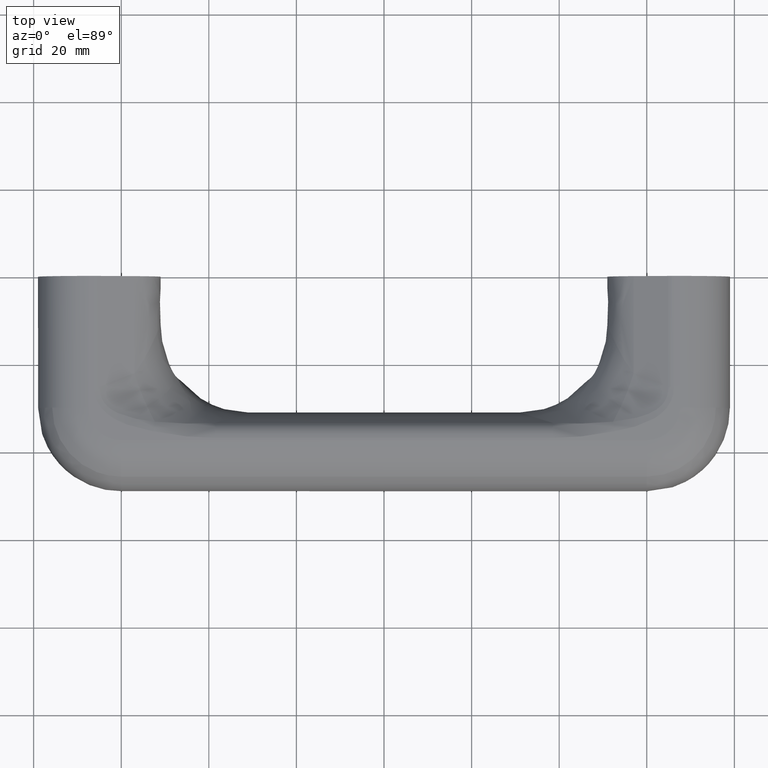
[diagram: clean part render]
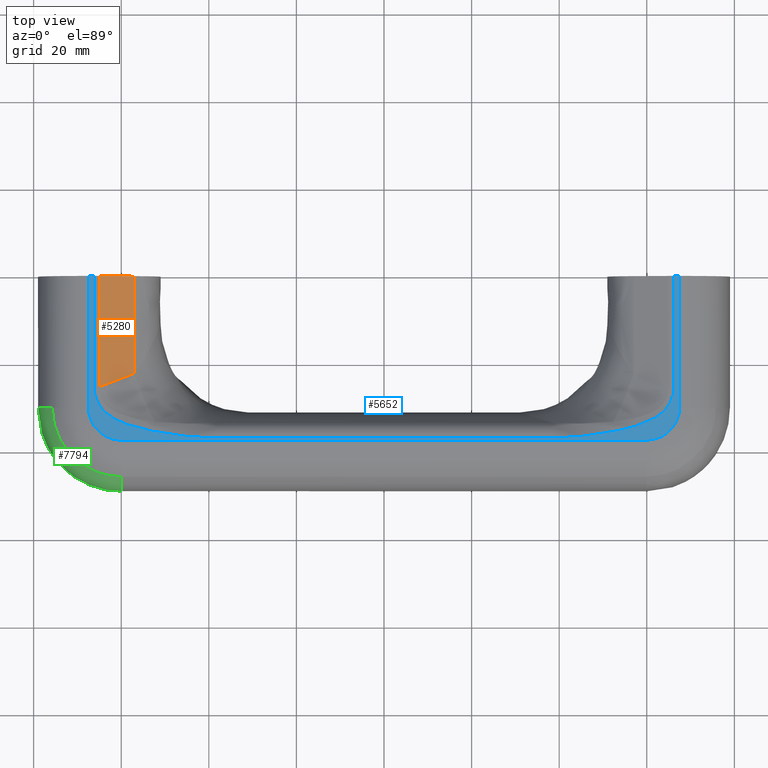
[diagram: same view with three faces highlighted in distinct colors, each labeled with its STEP entity id]
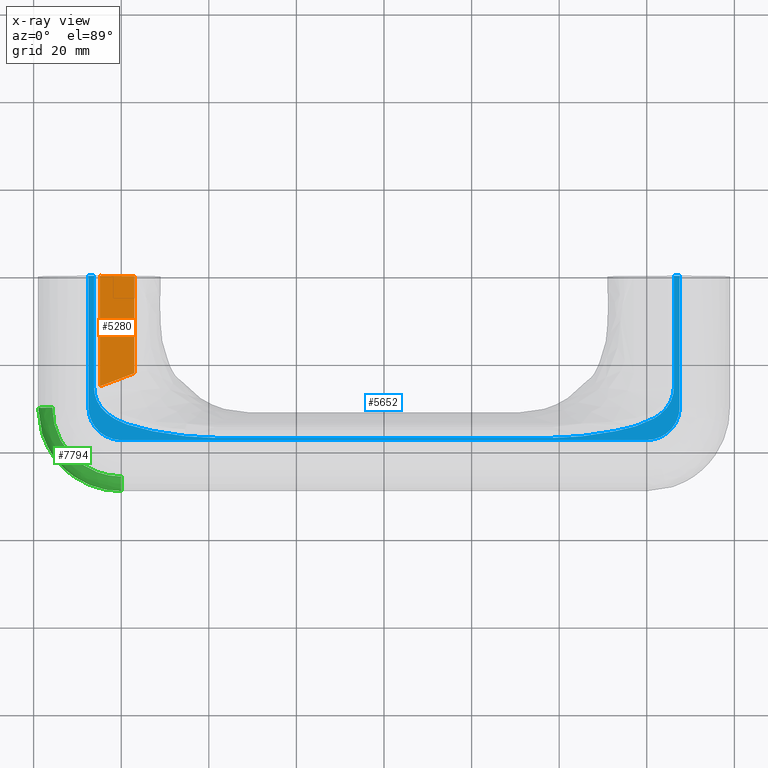
[diagram: x-ray of the same camera — body ghosted, the three highlighted faces saturated]
A machine part, top view with three faces highlighted in distinct colors.
The next image is the same camera in x-ray (body ghosted, the three faces saturated) — at least one of them is partly hidden behind the body in this view.
Their STEP definitions:

[orange] entity #5280 — the highlighted face is a freeform B-spline surface patch.
#1765=CARTESIAN_POINT('',(-64.880357608353989,11.271261134376820,25.234505489809450));
#1766=VERTEX_POINT('',#1765);
#1774=CARTESIAN_POINT('',(-64.880357608354203,11.271261134376900,0.0));
#1775=VERTEX_POINT('',#1774);
#1776=CARTESIAN_POINT('',(-64.880357608354203,11.271261134376900,0.0));
#1777=CARTESIAN_POINT('',(-64.880357608353989,11.271261134376820,25.234505489809450));
#1778=QUASI_UNIFORM_CURVE('',1,(#1776,#1777),.UNSPECIFIED.,.F.,.U.);
#1779=EDGE_CURVE('',#1775,#1766,#1778,.T.);
#4021=CARTESIAN_POINT('',(-57.000106220408597,8.485337552347890,22.189308786029748));
#4022=VERTEX_POINT('',#4021);
#4023=CARTESIAN_POINT('',(-64.880357608353989,11.271261134376820,25.234505489809450));
#4024=CARTESIAN_POINT('',(-62.286965194797993,10.354413088966380,24.125626392317830));
#4025=CARTESIAN_POINT('',(-59.658212485286150,9.425064035971104,23.109791271874059));
#4026=CARTESIAN_POINT('',(-57.000106220408597,8.485337552347890,22.189308786029748));
#4027=B_SPLINE_CURVE_WITH_KNOTS('',3,(#4023,#4024,#4025,#4026),.UNSPECIFIED.,.F.,.U.,(4,4),(5.153566E-011,8.897371943618710),.UNSPECIFIED.);
#4028=EDGE_CURVE('',#1766,#4022,#4027,.T.);
#5214=CARTESIAN_POINT('',(-57.000106220408597,8.485337552347890,0.0));
#5215=VERTEX_POINT('',#5214);
#5216=CARTESIAN_POINT('',(-57.000106220408597,8.485337552347890,0.0));
#5217=CARTESIAN_POINT('',(-64.880357608354203,11.271261134376900,0.0));
#5218=QUASI_UNIFORM_CURVE('',1,(#5216,#5217),.UNSPECIFIED.,.F.,.U.);
#5219=EDGE_CURVE('',#5215,#1775,#5218,.T.);
#5265=CARTESIAN_POINT('',(-65.273974494323269,11.410417426596670,-1.260463410151236));
#5266=CARTESIAN_POINT('',(-56.606488136705572,8.346180836690472,-1.260463410151236));
#5267=CARTESIAN_POINT('',(-65.273974494323269,11.410417426596670,26.494967771890380));
#5268=CARTESIAN_POINT('',(-56.606488136705572,8.346180836690472,26.494967771890380));
#5269=B_SPLINE_SURFACE_WITH_KNOTS('',1,1,((#5265,#5267),(#5266,#5268)),.UNSPECIFIED.,.F.,.F.,.U.,(2,2),(2,2),(0.0,9.193196703998497),(0.0,27.755431182041619),.UNSPECIFIED.);
#5270=ORIENTED_EDGE('',*,*,#5219,.T.);
#5271=ORIENTED_EDGE('',*,*,#1779,.T.);
#5272=ORIENTED_EDGE('',*,*,#4028,.T.);
#5273=CARTESIAN_POINT('',(-57.000106220408597,8.485337552347890,22.189308786029748));
#5274=CARTESIAN_POINT('',(-57.000106220408597,8.485337552347890,0.0));
#5275=QUASI_UNIFORM_CURVE('',1,(#5273,#5274),.UNSPECIFIED.,.F.,.U.);
#5276=EDGE_CURVE('',#4022,#5215,#5275,.T.);
#5277=ORIENTED_EDGE('',*,*,#5276,.T.);
#5278=EDGE_LOOP('',(#5270,#5271,#5272,#5277));
#5279=FACE_OUTER_BOUND('',#5278,.T.);
#5280=ADVANCED_FACE('',(#5279),#5269,.F.);

[blue] entity #5652 — the highlighted face is a freeform B-spline surface patch.
#1763=CARTESIAN_POINT('',(-66.213620319277396,11.500000000000000,25.234505489809450));
#1764=VERTEX_POINT('',#1763);
#1781=CARTESIAN_POINT('',(-66.213620319277595,11.500000000000000,0.0));
#1782=VERTEX_POINT('',#1781);
#1790=CARTESIAN_POINT('',(-66.213620319277396,11.500000000000000,25.234505489809450));
#1791=CARTESIAN_POINT('',(-66.213620319277595,11.500000000000000,0.0));
#1792=QUASI_UNIFORM_CURVE('',1,(#1790,#1791),.UNSPECIFIED.,.F.,.U.);
#1793=EDGE_CURVE('',#1764,#1782,#1792,.T.);
#1936=CARTESIAN_POINT('',(-52.729994420142603,11.500000000000000,35.477175857713263));
#1937=VERTEX_POINT('',#1936);
#1994=CARTESIAN_POINT('',(-52.729994420142603,11.500000000000000,35.477175857713263));
#1995=CARTESIAN_POINT('',(-53.488904169836282,11.500000000000000,35.340321623410659));
#1996=CARTESIAN_POINT('',(-54.243113151632983,11.500000000000000,35.187968396025461));
#1997=CARTESIAN_POINT('',(-55.739156877870130,11.500000000000000,34.842462603064348));
#1998=CARTESIAN_POINT('',(-56.481020264316683,11.500000000000000,34.649404473602686));
#1999=CARTESIAN_POINT('',(-57.581189257320233,11.500000000000000,34.318187563970142));
#2000=CARTESIAN_POINT('',(-57.945793692947412,11.500000000000000,34.200796775397102));
#2001=CARTESIAN_POINT('',(-58.669961895551687,11.500000000000011,33.949395511797292));
#2002=CARTESIAN_POINT('',(-59.029528679841427,11.500000000000000,33.815394985210688));
#2003=CARTESIAN_POINT('',(-59.742577608030352,11.500000000000000,33.527332146093222));
#2004=CARTESIAN_POINT('',(-60.096064774446162,11.500000000000000,33.373286393399447));
#2005=CARTESIAN_POINT('',(-60.620678594342337,11.500000000000000,33.123698076320622));
#2006=CARTESIAN_POINT('',(-60.794905578739083,11.500000000000000,33.037247933991843));
#2007=CARTESIAN_POINT('',(-61.139631475198392,11.500000000000000,32.858263762630592));
#2008=CARTESIAN_POINT('',(-61.310034073504390,11.500000000000000,32.765794383837481));
#2009=CARTESIAN_POINT('',(-61.814829136056623,11.500000000000000,32.478646872015837));
#2010=CARTESIAN_POINT('',(-62.142839014478767,11.500000000000000,32.274275148784582));
#2011=CARTESIAN_POINT('',(-62.778364897052739,11.500000000000000,31.834406508816070));
#2012=CARTESIAN_POINT('',(-63.085897442999617,11.500000000000000,31.598934715028559));
#2013=CARTESIAN_POINT('',(-63.454637448532651,11.500000000000000,31.280787445216291));
#2014=CARTESIAN_POINT('',(-63.527449709830087,11.500000000000000,31.216084728504239));
#2015=CARTESIAN_POINT('',(-63.670577378569597,11.500000000000000,31.084970737128021));
#2016=CARTESIAN_POINT('',(-63.881778340977370,11.500000000000000,30.885517550708791));
#2017=CARTESIAN_POINT('',(-64.082235086464109,11.500000000000000,30.677500489536659));
#2018=CARTESIAN_POINT('',(-64.468044665556874,11.500000000000000,30.249427517774770));
#2019=CARTESIAN_POINT('',(-64.705138913137503,11.500000000000000,29.948014788502839));
#2020=CARTESIAN_POINT('',(-65.027093453886877,11.500000000000000,29.469044989663850));
#2021=CARTESIAN_POINT('',(-65.128791107448052,11.500000000000000,29.304908446378839));
#2022=CARTESIAN_POINT('',(-65.272399803663674,11.500000000000000,29.051579607021559));
#2023=CARTESIAN_POINT('',(-65.318779202616966,11.500000000000000,28.965948896123528));
#2024=CARTESIAN_POINT('',(-65.408466024103120,11.500000000000000,28.792238899293810));
#2025=CARTESIAN_POINT('',(-65.451537016579252,11.500000000000000,28.704606645589681));
#2026=CARTESIAN_POINT('',(-65.657329691174510,11.500000000000000,28.264231433441811));
#2027=CARTESIAN_POINT('',(-65.792248659361093,11.500000000000000,27.903200745651208));
#2028=CARTESIAN_POINT('',(-66.005964153798018,11.500000000000000,27.164650217592559));
#2029=CARTESIAN_POINT('',(-66.084762118038498,11.500000000000000,26.787130799815738));
#2030=CARTESIAN_POINT('',(-66.162826681636801,11.500000000000000,26.209060508051060));
#2031=CARTESIAN_POINT('',(-66.182127422259683,11.500000000000000,26.014213258301510));
#2032=CARTESIAN_POINT('',(-66.207480760351686,11.500000000000000,25.624860597865649));
#2033=CARTESIAN_POINT('',(-66.213620319277382,11.500000000000000,25.429843204579001));
#2034=CARTESIAN_POINT('',(-66.213620319277396,11.500000000000000,25.234505489809450));
#2035=B_SPLINE_CURVE_WITH_KNOTS('',3,(#1994,#1995,#1996,#1997,#1998,#1999,#2000,#2001,#2002,#2003,#2004,#2005,#2006,#2007,#2008,#2009,#2010,#2011,#2012,#2013,#2014,#2015,#2016,#2017,#2018,#2019,#2020,#2021,#2022,#2023,#2024,#2025,#2026,#2027,#2028,#2029,#2030,#2031,#2032,#2033,#2034),.UNSPECIFIED.,.F.,.U.,(4,2,2,2,2,2,2,2,2,2,2,1,2,2,2,2,2,2,2,2,4),(0.0,0.124999999999996,0.249999999999991,0.312499999999989,0.374999999999987,0.437499999999985,0.468749999999984,0.499999999999983,0.562499999999981,0.624999999999979,0.640624999999979,0.656249999999980,0.687499999999981,0.749999999999985,0.781249999999987,0.796874999999988,0.812499999999989,0.874999999999992,0.937499999999996,0.968749999999998,1.0),.UNSPECIFIED.);
#2036=EDGE_CURVE('',#1937,#1764,#2035,.T.);
#2109=CARTESIAN_POINT('',(-38.534859386320498,11.500000000000000,37.009618943233448));
#2110=VERTEX_POINT('',#2109);
#2141=CARTESIAN_POINT('',(-38.534859386320498,11.500000000000000,37.009618943233448));
#2142=CARTESIAN_POINT('',(-39.731573612433287,11.500000000000000,37.009618943233463));
#2143=CARTESIAN_POINT('',(-40.924028936123207,11.500000000000000,36.970168411230190));
#2144=CARTESIAN_POINT('',(-43.301592718660267,11.500000000000000,36.823212788132203));
#2145=CARTESIAN_POINT('',(-44.486682026166747,11.500000000000000,36.715530296734741));
#2146=CARTESIAN_POINT('',(-46.259572822171833,11.500000000000000,36.510070264768153));
#2147=CARTESIAN_POINT('',(-46.849746488689782,11.500000000000000,36.434266386795052));
#2148=CARTESIAN_POINT('',(-48.028697272608113,11.500000000000000,36.269722291814723));
#2149=CARTESIAN_POINT('',(-48.617472512228453,11.500000000000000,36.180964680790431));
#2150=CARTESIAN_POINT('',(-49.793894861276740,11.500000000000000,35.992999504307193));
#2151=CARTESIAN_POINT('',(-50.381539085232632,11.500000000000000,35.893765210504633));
#2152=CARTESIAN_POINT('',(-51.556125425607661,11.500000000000000,35.688792948220978));
#2153=CARTESIAN_POINT('',(-52.143063457925223,11.500000000000000,35.583017148400558));
#2154=CARTESIAN_POINT('',(-52.729994420142603,11.500000000000000,35.477175857713263));
#2155=B_SPLINE_CURVE_WITH_KNOTS('',3,(#2141,#2142,#2143,#2144,#2145,#2146,#2147,#2148,#2149,#2150,#2151,#2152,#2153,#2154),.UNSPECIFIED.,.F.,.U.,(4,2,2,2,2,2,4),(0.0,0.250000000000000,0.500000000000000,0.625000000000000,0.750000000000000,0.875000000000000,1.0),.UNSPECIFIED.);
#2156=EDGE_CURVE('',#2110,#1937,#2155,.T.);
#2175=CARTESIAN_POINT('',(38.534859386320498,11.500000000000000,37.009618943233448));
#2176=VERTEX_POINT('',#2175);
#2195=CARTESIAN_POINT('',(38.534859386320498,11.500000000000000,37.009618943233448));
#2196=CARTESIAN_POINT('',(-38.534859386320498,11.500000000000000,37.009618943233448));
#2197=QUASI_UNIFORM_CURVE('',1,(#2195,#2196),.UNSPECIFIED.,.F.,.U.);
#2198=EDGE_CURVE('',#2176,#2110,#2197,.T.);
#2271=CARTESIAN_POINT('',(52.729994420142603,11.500000000000000,35.477175857713263));
#2272=VERTEX_POINT('',#2271);
#2301=CARTESIAN_POINT('',(52.729994420142603,11.500000000000000,35.477175857713263));
#2302=CARTESIAN_POINT('',(52.143063457925201,11.500000000000000,35.583017148400558));
#2303=CARTESIAN_POINT('',(51.556125425607682,11.500000000000000,35.688792948220922));
#2304=CARTESIAN_POINT('',(50.381539085232610,11.500000000000000,35.893765210504561));
#2305=CARTESIAN_POINT('',(49.793894861276733,11.500000000000000,35.992999504307200));
#2306=CARTESIAN_POINT('',(48.617472512228453,11.500000000000000,36.180964680790417));
#2307=CARTESIAN_POINT('',(48.028697272607580,11.500000000000000,36.269722291810027));
#2308=CARTESIAN_POINT('',(46.849746488689263,11.500000000000000,36.434266386790483));
#2309=CARTESIAN_POINT('',(46.259572822171833,11.500000000000000,36.510070264768082));
#2310=CARTESIAN_POINT('',(44.486682026166761,11.500000000000000,36.715530296734698));
#2311=CARTESIAN_POINT('',(43.301592718660309,11.500000000000000,36.823212788132437));
#2312=CARTESIAN_POINT('',(40.924028936123172,11.500000000000000,36.970168411229963));
#2313=CARTESIAN_POINT('',(39.731573612433273,11.500000000000000,37.009618943233413));
#2314=CARTESIAN_POINT('',(38.534859386320498,11.500000000000000,37.009618943233413));
#2315=B_SPLINE_CURVE_WITH_KNOTS('',3,(#2301,#2302,#2303,#2304,#2305,#2306,#2307,#2308,#2309,#2310,#2311,#2312,#2313,#2314),.UNSPECIFIED.,.F.,.U.,(4,2,2,2,2,2,4),(0.0,0.125000000000000,0.250000000000000,0.375000000000000,0.500000000000000,0.750000000000000,1.0),.UNSPECIFIED.);
#2316=EDGE_CURVE('',#2272,#2176,#2315,.T.);
#2459=CARTESIAN_POINT('',(66.213620319277396,11.500000000000000,25.234505489809450));
#2460=VERTEX_POINT('',#2459);
#2516=CARTESIAN_POINT('',(66.213620319277396,11.500000000000000,25.234505489809450));
#2517=CARTESIAN_POINT('',(66.213620319277197,11.500000000000000,25.624395927681402));
#2518=CARTESIAN_POINT('',(66.189183835421431,11.500000000000000,26.009588825115820));
#2519=CARTESIAN_POINT('',(66.087657491772816,11.500000000000000,26.769852813422741));
#2520=CARTESIAN_POINT('',(66.010574055699649,11.500000000000000,27.144925139157191));
#2521=CARTESIAN_POINT('',(65.851777376435948,11.500000000000000,27.699234562052052));
#2522=CARTESIAN_POINT('',(65.791640387333885,11.500000000000000,27.882619364204299));
#2523=CARTESIAN_POINT('',(65.656218282853018,11.500000000000000,28.246476972815909));
#2524=CARTESIAN_POINT('',(65.580565975018089,11.500000000000000,28.427594826587690));
#2525=CARTESIAN_POINT('',(65.334768834752708,11.500000000000000,28.956190189907911));
#2526=CARTESIAN_POINT('',(65.144947929638519,11.500000000000000,29.291873902768629));
#2527=CARTESIAN_POINT('',(64.716989813000382,11.500000000000000,29.932130394955461));
#2528=CARTESIAN_POINT('',(64.478844463518939,11.500000000000000,30.236697934239981));
#2529=CARTESIAN_POINT('',(64.152933953351976,11.500000000000000,30.599230781715949));
#2530=CARTESIAN_POINT('',(64.086435702730483,11.500000000000000,30.670711987923909));
#2531=CARTESIAN_POINT('',(63.951694375327953,11.500000000000000,30.810876591723702));
#2532=CARTESIAN_POINT('',(63.883339259570000,11.500000000000000,30.879685964383349));
#2533=CARTESIAN_POINT('',(63.675463675520447,11.500000000000000,31.082480352776859));
#2534=CARTESIAN_POINT('',(63.533136032049093,11.500000000000000,31.212835597670701));
#2535=CARTESIAN_POINT('',(63.095943317233328,11.500000000000000,31.590699741666992));
#2536=CARTESIAN_POINT('',(62.790903053667343,11.500000000000000,31.825051778923420));
#2537=CARTESIAN_POINT('',(62.158092566394231,11.500000000000000,32.264365259250589));
#2538=CARTESIAN_POINT('',(61.830310171711517,11.500000000000000,32.469310964845327));
#2539=CARTESIAN_POINT('',(61.324157972478730,11.500000000000000,32.758008202733443));
#2540=CARTESIAN_POINT('',(61.153597356328021,11.500000000000000,32.850775115433372));
#2541=CARTESIAN_POINT('',(60.810451787164041,11.500000000000000,33.029394124451102));
#2542=CARTESIAN_POINT('',(60.637654675410857,11.500000000000000,33.115366914363122));
#2543=CARTESIAN_POINT('',(60.115963272076563,11.500000000000000,33.364291458286303));
#2544=CARTESIAN_POINT('',(59.763782670690759,11.500000000000000,33.518286882524450));
#2545=CARTESIAN_POINT('',(58.696451505452913,11.500000000000000,33.950868418127193));
#2546=CARTESIAN_POINT('',(57.970628268529929,11.500000000000000,34.200367807526042));
#2547=CARTESIAN_POINT('',(56.866818299499698,11.500000000000000,34.533531997868117));
#2548=CARTESIAN_POINT('',(56.496334477170663,11.500000000000000,34.637644820520777));
#2549=CARTESIAN_POINT('',(55.751006418316621,11.500000000000000,34.833986830439663));
#2550=CARTESIAN_POINT('',(55.375900092362691,11.500000000000000,34.926270516126223));
#2551=CARTESIAN_POINT('',(54.247116615814143,11.500000000000000,35.187210774511946));
#2552=CARTESIAN_POINT('',(53.490200689910282,11.500000000000000,35.340087821878782));
#2553=CARTESIAN_POINT('',(52.729994420142610,11.500000000000000,35.477175857713213));
#2554=B_SPLINE_CURVE_WITH_KNOTS('',3,(#2516,#2517,#2518,#2519,#2520,#2521,#2522,#2523,#2524,#2525,#2526,#2527,#2528,#2529,#2530,#2531,#2532,#2533,#2534,#2535,#2536,#2537,#2538,#2539,#2540,#2541,#2542,#2543,#2544,#2545,#2546,#2547,#2548,#2549,#2550,#2551,#2552,#2553),.UNSPECIFIED.,.F.,.U.,(4,2,2,2,2,2,2,2,2,2,2,2,2,2,2,2,2,2,4),(0.0,0.062500000000002,0.125000000000004,0.156250000000005,0.187500000000006,0.250000000000006,0.312500000000007,0.328125000000007,0.343750000000006,0.375000000000005,0.437500000000005,0.500000000000004,0.531250000000004,0.562500000000004,0.625000000000003,0.750000000000002,0.812500000000001,0.875000000000001,1.0),.UNSPECIFIED.);
#2555=EDGE_CURVE('',#2460,#2272,#2554,.T.);
#2576=CARTESIAN_POINT('',(66.213620319277396,11.500000000000000,0.0));
#2577=VERTEX_POINT('',#2576);
#2591=CARTESIAN_POINT('',(66.213620319277396,11.500000000000000,0.0));
#2592=CARTESIAN_POINT('',(66.213620319277396,11.500000000000000,25.234505489809450));
#2593=QUASI_UNIFORM_CURVE('',1,(#2591,#2592),.UNSPECIFIED.,.F.,.U.);
#2594=EDGE_CURVE('',#2577,#2460,#2593,.T.);
#4686=CARTESIAN_POINT('',(67.500000000000000,11.500000000000000,0.0));
#4687=VERTEX_POINT('',#4686);
#4702=CARTESIAN_POINT('',(67.500000000000000,11.500000000000000,30.0));
#4703=VERTEX_POINT('',#4702);
#4704=CARTESIAN_POINT('',(67.500000000000000,11.500000000000000,30.0));
#4705=CARTESIAN_POINT('',(67.500000000000000,11.500000000000000,0.0));
#4706=QUASI_UNIFORM_CURVE('',1,(#4704,#4705),.UNSPECIFIED.,.F.,.U.);
#4707=EDGE_CURVE('',#4703,#4687,#4706,.T.);
#4833=CARTESIAN_POINT('',(-67.500000000000000,11.500000000000000,0.0));
#4834=VERTEX_POINT('',#4833);
#4835=CARTESIAN_POINT('',(-67.500000000000000,11.500000000000000,30.0));
#4836=VERTEX_POINT('',#4835);
#4837=CARTESIAN_POINT('',(-67.500000000000000,11.500000000000000,0.0));
#4838=CARTESIAN_POINT('',(-67.500000000000000,11.500000000000000,30.0));
#4839=QUASI_UNIFORM_CURVE('',1,(#4837,#4838),.UNSPECIFIED.,.F.,.U.);
#4840=EDGE_CURVE('',#4834,#4836,#4839,.T.);
#5208=CARTESIAN_POINT('',(-66.213620319277595,11.500000000000000,0.0));
#5209=CARTESIAN_POINT('',(-67.500000000000000,11.500000000000000,0.0));
#5210=QUASI_UNIFORM_CURVE('',1,(#5208,#5209),.UNSPECIFIED.,.F.,.U.);
#5211=EDGE_CURVE('',#1782,#4834,#5210,.T.);
#5335=CARTESIAN_POINT('',(67.500000000000000,11.500000000000000,0.0));
#5336=CARTESIAN_POINT('',(66.213620319277396,11.500000000000000,0.0));
#5337=QUASI_UNIFORM_CURVE('',1,(#5335,#5336),.UNSPECIFIED.,.F.,.U.);
#5338=EDGE_CURVE('',#4687,#2577,#5337,.T.);
#5599=CARTESIAN_POINT('',(-74.243249738343806,11.500000000000000,39.373124927317733));
#5600=CARTESIAN_POINT('',(-74.243249738343806,11.500000000000000,-1.873125933146104));
#5601=CARTESIAN_POINT('',(74.243253359325962,11.500000000000000,39.373124927317733));
#5602=CARTESIAN_POINT('',(74.243253359325962,11.500000000000000,-1.873125933146104));
#5603=B_SPLINE_SURFACE_WITH_KNOTS('',1,1,((#5599,#5601),(#5600,#5602)),.UNSPECIFIED.,.F.,.F.,.U.,(2,2),(2,2),(0.0,41.246250860463832),(0.0,148.486503097669810),.UNSPECIFIED.);
#5604=ORIENTED_EDGE('',*,*,#2036,.T.);
#5605=ORIENTED_EDGE('',*,*,#1793,.T.);
#5606=ORIENTED_EDGE('',*,*,#5211,.T.);
#5607=ORIENTED_EDGE('',*,*,#4840,.T.);
#5608=CARTESIAN_POINT('',(-60.0,11.500000000000000,37.500000000000000));
#5609=VERTEX_POINT('',#5608);
#5610=CARTESIAN_POINT('',(-67.500000000000000,11.500000000000000,30.0));
#5611=CARTESIAN_POINT('',(-67.500193050719488,11.500000000000011,30.644301205108029));
#5612=CARTESIAN_POINT('',(-67.376641463103780,11.499999999999980,31.595239412575641));
#5613=CARTESIAN_POINT('',(-66.913853867959531,11.500000000000011,32.996214790717730));
#5614=CARTESIAN_POINT('',(-66.252719777912205,11.500000000000030,34.251730747223107));
#5615=CARTESIAN_POINT('',(-65.211058445649542,11.499999999999940,35.474364922625163));
#5616=CARTESIAN_POINT('',(-63.910740928671267,11.500000000000110,36.463669992642068));
#5617=CARTESIAN_POINT('',(-62.208638825225940,11.499999999999890,37.268863815585938));
#5618=CARTESIAN_POINT('',(-60.828418371429507,11.500000000000030,37.500505104197281));
#5619=CARTESIAN_POINT('',(-60.0,11.500000000000000,37.500000000000000));
#5620=B_SPLINE_CURVE_WITH_KNOTS('',3,(#5610,#5611,#5612,#5613,#5614,#5615,#5616,#5617,#5618,#5619),.UNSPECIFIED.,.F.,.U.,(4,1,1,1,1,1,1,4),(0.000000203037784,1.932828462892507,2.853221894001162,4.417913062456957,6.166622082685319,7.639267543508979,9.295986013194121,11.781046371576929),.UNSPECIFIED.);
#5621=EDGE_CURVE('',#4836,#5609,#5620,.T.);
#5622=ORIENTED_EDGE('',*,*,#5621,.T.);
#5623=CARTESIAN_POINT('',(60.0,11.500000000000000,37.500000000000000));
#5624=VERTEX_POINT('',#5623);
#5625=CARTESIAN_POINT('',(-60.0,11.500000000000000,37.500000000000000));
#5626=CARTESIAN_POINT('',(60.0,11.500000000000000,37.500000000000000));
#5627=QUASI_UNIFORM_CURVE('',1,(#5625,#5626),.UNSPECIFIED.,.F.,.U.);
#5628=EDGE_CURVE('',#5609,#5624,#5627,.T.);
#5629=ORIENTED_EDGE('',*,*,#5628,.T.);
#5630=CARTESIAN_POINT('',(60.0,11.500000000000000,37.500000000000000));
#5631=CARTESIAN_POINT('',(60.613604152078501,11.500000000000030,37.500178239203557));
#5632=CARTESIAN_POINT('',(61.564578623098683,11.499999999999970,37.382580133758047));
#5633=CARTESIAN_POINT('',(62.910355596258299,11.500000000000000,36.947092430395209));
#5634=CARTESIAN_POINT('',(64.254856672910236,11.500000000000041,36.260349827555054));
#5635=CARTESIAN_POINT('',(65.599214596117690,11.499999999999950,35.114871049910363));
#5636=CARTESIAN_POINT('',(66.568777478208233,11.500000000000069,33.719836565344920));
#5637=CARTESIAN_POINT('',(67.294523516694724,11.499999999999940,32.055215842800443));
#5638=CARTESIAN_POINT('',(67.500525381626588,11.500000000000041,30.828440901460208));
#5639=CARTESIAN_POINT('',(67.500000000000000,11.500000000000000,30.0));
#5640=B_SPLINE_CURVE_WITH_KNOTS('',3,(#5630,#5631,#5632,#5633,#5634,#5635,#5636,#5637,#5638,#5639),.UNSPECIFIED.,.F.,.U.,(4,1,1,1,1,1,1,4),(0.000000203047737,1.840764457850002,2.853221894006834,4.233844661044831,6.350684659206872,8.099465283774508,9.295986013194863,11.781046371576940),.UNSPECIFIED.);
#5641=EDGE_CURVE('',#5624,#4703,#5640,.T.);
#5642=ORIENTED_EDGE('',*,*,#5641,.T.);
#5643=ORIENTED_EDGE('',*,*,#4707,.T.);
#5644=ORIENTED_EDGE('',*,*,#5338,.T.);
#5645=ORIENTED_EDGE('',*,*,#2594,.T.);
#5646=ORIENTED_EDGE('',*,*,#2555,.T.);
#5647=ORIENTED_EDGE('',*,*,#2316,.T.);
#5648=ORIENTED_EDGE('',*,*,#2198,.T.);
#5649=ORIENTED_EDGE('',*,*,#2156,.T.);
#5650=EDGE_LOOP('',(#5604,#5605,#5606,#5607,#5622,#5629,#5642,#5643,#5644,#5645,#5646,#5647,#5648,#5649));
#5651=FACE_OUTER_BOUND('',#5650,.T.);
#5652=ADVANCED_FACE('',(#5651),#5603,.F.);

[green] entity #7794 — the highlighted face is a freeform B-spline surface patch.
#7525=CARTESIAN_POINT('',(-60.0,-8.0,45.761355820929303));
#7526=VERTEX_POINT('',#7525);
#7532=CARTESIAN_POINT('',(-75.761355820929396,-8.0,30.0));
#7533=VERTEX_POINT('',#7532);
#7534=CARTESIAN_POINT('',(-75.761355820929396,-8.0,30.0));
#7535=CARTESIAN_POINT('',(-75.761483316235982,-8.000000000000009,31.031573892610020));
#7536=CARTESIAN_POINT('',(-75.577135649233199,-7.999999999999990,32.901268992023333));
#7537=CARTESIAN_POINT('',(-74.907055399029133,-8.000000000000009,35.265962047416693));
#7538=CARTESIAN_POINT('',(-74.055466820733983,-8.0,37.219307177683312));
#7539=CARTESIAN_POINT('',(-72.937547430376853,-7.999999999999994,39.110750574899491));
#7540=CARTESIAN_POINT('',(-71.254471975040303,-8.000000000000048,41.161761598141382));
#7541=CARTESIAN_POINT('',(-69.222023040949736,-7.999999999999875,42.871820409858962));
#7542=CARTESIAN_POINT('',(-66.885541328793863,-8.000000000000156,44.252784920165489));
#7543=CARTESIAN_POINT('',(-63.932632995090827,-7.999999999999882,45.412979056721909));
#7544=CARTESIAN_POINT('',(-61.482947802119519,-8.000000000000046,45.761899452272658));
#7545=CARTESIAN_POINT('',(-60.0,-8.0,45.761355820929303));
#7546=B_SPLINE_CURVE_WITH_KNOTS('',3,(#7534,#7535,#7536,#7537,#7538,#7539,#7540,#7541,#7542,#7543,#7544,#7545),.UNSPECIFIED.,.F.,.U.,(4,1,1,1,1,1,1,1,1,4),(0.000000058961888,3.094724046781195,5.609238340113091,7.350053893603132,9.477726287240168,12.185618720924239,15.280312090083079,17.407986167518601,20.309340049871469,24.758035174011699),.UNSPECIFIED.);
#7547=EDGE_CURVE('',#7533,#7526,#7546,.T.);
#7568=CARTESIAN_POINT('',(-75.761355820928898,8.0,30.0));
#7569=VERTEX_POINT('',#7568);
#7575=CARTESIAN_POINT('',(-60.0,8.0,45.761355820928799));
#7576=VERTEX_POINT('',#7575);
#7577=CARTESIAN_POINT('',(-75.761355820928898,8.0,30.0));
#7578=CARTESIAN_POINT('',(-75.761774020126310,8.000000000000009,31.353989713744259));
#7579=CARTESIAN_POINT('',(-75.477035778835159,7.999999999999994,33.545854622828763));
#7580=CARTESIAN_POINT('',(-74.427641389078474,8.000000000000011,36.536393231785567));
#7581=CARTESIAN_POINT('',(-73.038710124303378,7.999999999999986,39.023764972116467));
#7582=CARTESIAN_POINT('',(-71.328566106285507,8.000000000000009,41.056154280927551));
#7583=CARTESIAN_POINT('',(-69.225321600923891,7.999999999999983,42.870413773864122));
#7584=CARTESIAN_POINT('',(-67.120312861196282,8.000000000000041,44.149809154212818));
#7585=CARTESIAN_POINT('',(-64.774486907498229,7.999999999999933,45.071081629214518));
#7586=CARTESIAN_POINT('',(-62.514449552678201,8.000000000000158,45.622506104826357));
#7587=CARTESIAN_POINT('',(-60.902634722738050,7.999999999999884,45.761433433132709));
#7588=CARTESIAN_POINT('',(-60.0,8.0,45.761355820928799));
#7589=B_SPLINE_CURVE_WITH_KNOTS('',3,(#7577,#7578,#7579,#7580,#7581,#7582,#7583,#7584,#7585,#7586,#7587,#7588),.UNSPECIFIED.,.F.,.U.,(4,1,1,1,1,1,1,1,1,4),(0.000000058945030,4.061845316967833,6.576357642830629,9.477726287229238,12.572419282884001,14.506650845124080,17.794839514349992,19.922484366228090,22.050127564209980,24.758035174010800),.UNSPECIFIED.);
#7590=EDGE_CURVE('',#7569,#7576,#7589,.T.);
#7719=CARTESIAN_POINT('',(-75.338370606732141,8.377929893946503,28.898996403117337));
#7720=CARTESIAN_POINT('',(-75.571314637991193,8.158327156731062,28.882275447361064));
#7721=CARTESIAN_POINT('',(-75.791694521280888,7.926055036731645,28.866456358723571));
#7722=CARTESIAN_POINT('',(-83.311938810381051,-2.168404E-013,28.326645695386137));
#7723=CARTESIAN_POINT('',(-75.791694521280888,-7.926055036732087,28.866456358723571));
#7724=CARTESIAN_POINT('',(-75.571314637991165,-8.158327156731506,28.882275447361071));
#7725=CARTESIAN_POINT('',(-75.338370606732113,-8.377929893946947,28.898996403117344));
#7726=CARTESIAN_POINT('',(-75.377835406513256,8.377929893946501,29.448790905766820));
#7727=CARTESIAN_POINT('',(-75.611378790193086,8.158327156731062,29.440419686178416));
#7728=CARTESIAN_POINT('',(-75.832325699028900,7.926055036731645,29.432499979517917));
#7729=CARTESIAN_POINT('',(-83.371919170828050,-2.168404E-013,29.162247868046073));
#7730=CARTESIAN_POINT('',(-75.832325699028900,-7.926055036732086,29.432499979517917));
#7731=CARTESIAN_POINT('',(-75.611378790193072,-8.158327156731506,29.440419686178419));
#7732=CARTESIAN_POINT('',(-75.377835406513228,-8.377929893946947,29.448790905766828));
#7733=CARTESIAN_POINT('',(-75.377835406513256,8.377929893946501,29.999999999999993));
#7734=CARTESIAN_POINT('',(-75.611378790193072,8.158327156731062,29.999999999999993));
#7735=CARTESIAN_POINT('',(-75.832325699028900,7.926055036731645,30.0));
#7736=CARTESIAN_POINT('',(-83.371919170828036,-2.168404E-013,30.000000000000004));
#7737=CARTESIAN_POINT('',(-75.832325699028900,-7.926055036732086,30.0));
#7738=CARTESIAN_POINT('',(-75.611378790193072,-8.158327156731506,29.999999999999996));
#7739=CARTESIAN_POINT('',(-75.377835406513242,-8.377929893946947,30.0));
#7740=CARTESIAN_POINT('',(-75.377835406513228,8.377929893946501,45.377835406513263));
#7741=CARTESIAN_POINT('',(-75.611378790193044,8.158327156731060,45.611378790193086));
#7742=CARTESIAN_POINT('',(-75.832325699028914,7.926055036731644,45.832325699028907));
#7743=CARTESIAN_POINT('',(-83.371919170828065,-2.168404E-013,53.371919170828065));
#7744=CARTESIAN_POINT('',(-75.832325699028914,-7.926055036732086,45.832325699028907));
#7745=CARTESIAN_POINT('',(-75.611378790193072,-8.158327156731506,45.611378790193093));
#7746=CARTESIAN_POINT('',(-75.377835406513270,-8.377929893946948,45.377835406513270));
#7747=CARTESIAN_POINT('',(-59.999999999999986,8.377929893946501,45.377835406513249));
#7748=CARTESIAN_POINT('',(-59.999999999999993,8.158327156731062,45.611378790193072));
#7749=CARTESIAN_POINT('',(-60.0,7.926055036731645,45.832325699028900));
#7750=CARTESIAN_POINT('',(-60.0,-2.168404E-013,53.371919170828050));
#7751=CARTESIAN_POINT('',(-60.0,-7.926055036732086,45.832325699028900));
#7752=CARTESIAN_POINT('',(-60.0,-8.158327156731506,45.611378790193079));
#7753=CARTESIAN_POINT('',(-59.999999999999993,-8.377929893946947,45.377835406513249));
#7761=(BOUNDED_SURFACE()B_SPLINE_SURFACE(2,2,((#7719,#7726,#7733,#7740,#7747),(#7720,#7727,#7734,#7741,#7748),(#7721,#7728,#7735,#7742,#7749),(#7722,#7729,#7736,#7743,#7750),(#7723,#7730,#7737,#7744,#7751),(#7724,#7731,#7738,#7745,#7752),(#7725,#7732,#7739,#7746,#7753)),.UNSPECIFIED.,.F.,.F.,.U.)B_SPLINE_SURFACE_WITH_KNOTS((3,2,2,3),(3,2,3),(0.0,0.735362129934197,19.119415378289158,19.854777508223361),(0.0,1.572437525480741,33.052668265835962),.UNSPECIFIED.)GEOMETRIC_REPRESENTATION_ITEM()RATIONAL_B_SPLINE_SURFACE(((0.951635015513225,0.964524919877459,0.978845444668297,0.692148251658515,0.978845444668297),(0.961489792236852,0.974513179635472,0.988982002431405,0.699315880390697,0.988982002431405),(0.972201506066881,0.985369983720268,1.0,0.707106781186548,1.0),(0.704408660316146,0.713949881600354,0.724550060785122,0.512334261290285,0.724550060785122),(0.972201506066881,0.985369983720268,1.0,0.707106781186548,1.0),(0.961489792236852,0.974513179635471,0.988982002431405,0.699315880390697,0.988982002431405),(0.951635015513225,0.964524919877459,0.978845444668297,0.692148251658514,0.978845444668297)))REPRESENTATION_ITEM('')SURFACE());
#7762=CARTESIAN_POINT('',(-75.761355820929396,-8.0,30.0));
#7763=CARTESIAN_POINT('',(-76.531080471472791,-7.205818936614209,30.000000000000060));
#7764=CARTESIAN_POINT('',(-77.511175190946744,-5.846198294586921,30.0));
#7765=CARTESIAN_POINT('',(-78.502720026939741,-3.556838377676904,29.999999999999911));
#7766=CARTESIAN_POINT('',(-78.932951037198933,-1.705894225744589,30.000000000000171));
#7767=CARTESIAN_POINT('',(-79.037722482401861,0.230855218487549,29.999999999999769));
#7768=CARTESIAN_POINT('',(-78.896253806851405,1.795938796187986,30.000000000000298));
#7769=CARTESIAN_POINT('',(-78.488649878904923,3.549567437544384,29.999999999999751));
#7770=CARTESIAN_POINT('',(-77.620202531537785,5.695140322743539,30.000000000000121));
#7771=CARTESIAN_POINT('',(-76.531062343214217,7.205834995405170,30.000000000000099));
#7772=CARTESIAN_POINT('',(-75.761355820928898,8.0,30.0));
#7773=B_SPLINE_CURVE_WITH_KNOTS('',3,(#7762,#7763,#7764,#7765,#7766,#7767,#7768,#7769,#7770,#7771,#7772),.UNSPECIFIED.,.F.,.U.,(4,1,1,1,1,1,1,1,4),(0.000000155093950,3.317742738050283,4.976619693436188,7.464970128428361,8.985509265792958,10.782629805481511,12.165057158723579,14.376896058628351,17.694635429807931),.UNSPECIFIED.);
#7774=EDGE_CURVE('',#7533,#7569,#7773,.T.);
#7775=ORIENTED_EDGE('',*,*,#7774,.F.);
#7776=ORIENTED_EDGE('',*,*,#7547,.T.);
#7777=CARTESIAN_POINT('',(-60.0,8.0,45.761355820928799));
#7778=CARTESIAN_POINT('',(-60.000000000000007,7.470414412959556,46.274304842974701));
#7779=CARTESIAN_POINT('',(-60.0,6.348310684048474,47.168902127086788));
#7780=CARTESIAN_POINT('',(-60.000000000000021,4.221999829808593,48.294673680852398));
#7781=CARTESIAN_POINT('',(-60.000000000000050,2.028883444628129,48.902757833882063));
#7782=CARTESIAN_POINT('',(-59.999999999999979,-0.323270096470753,49.058302843510333));
#7783=CARTESIAN_POINT('',(-60.000000000000092,-2.532176202508151,48.805096430923982));
#7784=CARTESIAN_POINT('',(-59.999999999999851,-4.596882654959634,48.110338356791701));
#7785=CARTESIAN_POINT('',(-60.000000000000291,-6.456885297132960,47.082302770855676));
#7786=CARTESIAN_POINT('',(-59.999999999999837,-7.470421459107111,46.274306050541838));
#7787=CARTESIAN_POINT('',(-60.0,-8.0,45.761355820929303));
#7788=B_SPLINE_CURVE_WITH_KNOTS('',3,(#7777,#7778,#7779,#7780,#7781,#7782,#7783,#7784,#7785,#7786,#7787),.UNSPECIFIED.,.F.,.U.,(4,1,1,1,1,1,1,1,4),(0.000000155066939,2.211829240407496,4.285418916088348,7.188467384762255,8.985509265779662,11.335595173351351,13.823935251959590,15.482820373879200,17.694635429808180),.UNSPECIFIED.);
#7789=EDGE_CURVE('',#7576,#7526,#7788,.T.);
#7790=ORIENTED_EDGE('',*,*,#7789,.F.);
#7791=ORIENTED_EDGE('',*,*,#7590,.F.);
#7792=EDGE_LOOP('',(#7775,#7776,#7790,#7791));
#7793=FACE_OUTER_BOUND('',#7792,.T.);
#7794=ADVANCED_FACE('',(#7793),#7761,.T.);